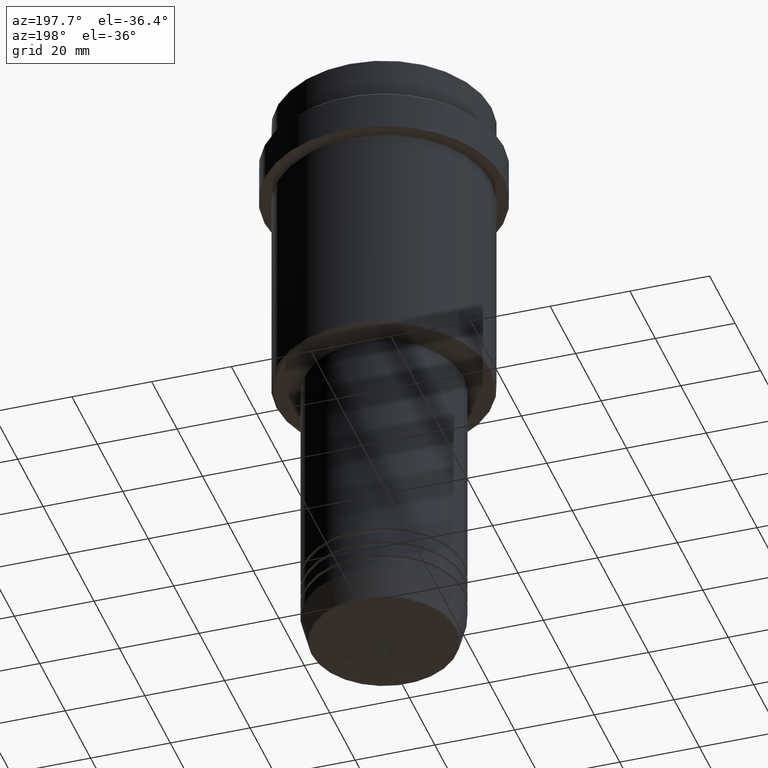
[diagram: clean part render]
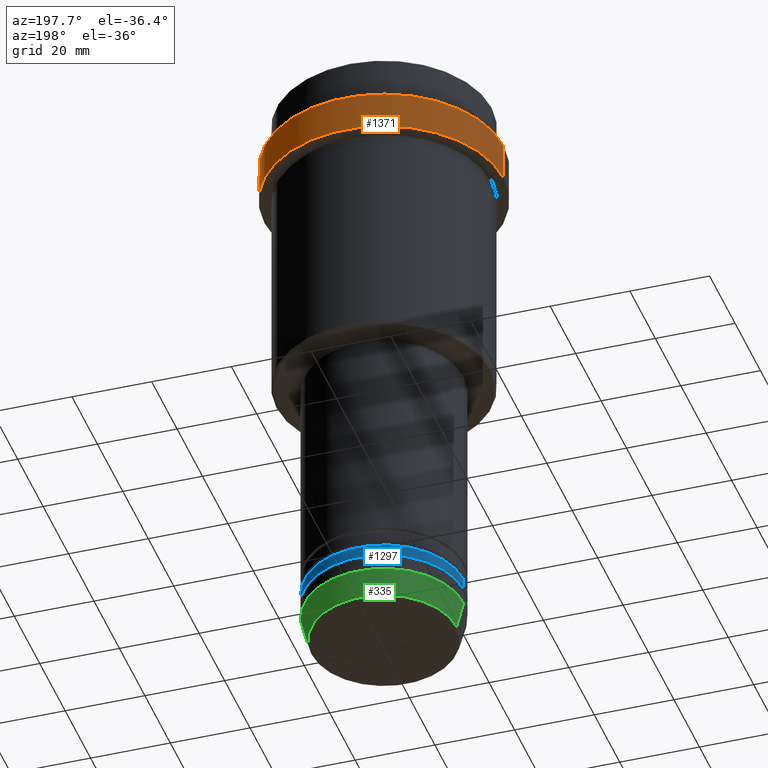
[diagram: same view with three faces highlighted in distinct colors, each labeled with its STEP entity id]
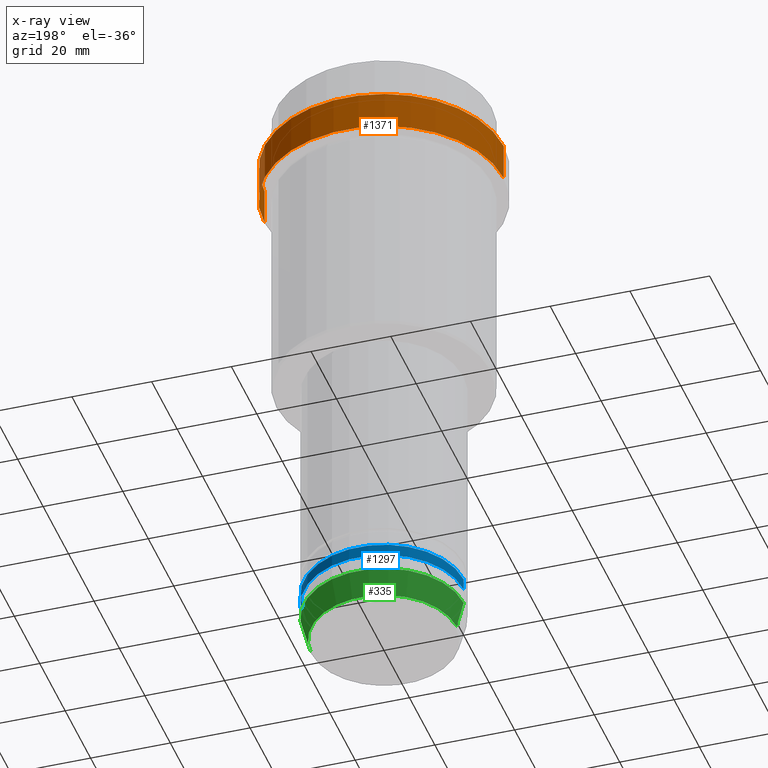
[diagram: x-ray of the same camera — body ghosted, the three highlighted faces saturated]
A machine part, auxiliary view with three faces highlighted in distinct colors.
The next image is the same camera in x-ray (body ghosted, the three faces saturated) — at least one of them is partly hidden behind the body in this view.
Their STEP definitions:

[orange] entity #1371 — the highlighted cylindrical surface (partial cylindrical patch) has radius 30 mm, axis along (-0, -0, 1).
#12 = LINE ( 'NONE', #798, #1314 ) ;
#81 = EDGE_CURVE ( 'NONE', #1157, #311, #12, .T. ) ;
#87 = DIRECTION ( 'NONE',  ( 0.000000000000000000, 0.000000000000000000, -1.000000000000000000 ) ) ;
#111 = DIRECTION ( 'NONE',  ( -0.000000000000000000, -0.000000000000000000, 1.000000000000000000 ) ) ;
#220 = LINE ( 'NONE', #1326, #943 ) ;
#236 = CIRCLE ( 'NONE', #1359, 29.99999999999999645 ) ;
#295 = DIRECTION ( 'NONE',  ( -0.000000000000000000, -0.000000000000000000, 1.000000000000000000 ) ) ;
#311 = VERTEX_POINT ( 'NONE', #1198 ) ;
#370 = CARTESIAN_POINT ( 'NONE',  ( 0.000000000000000000, 0.000000000000000000, -22.00000000000000355 ) ) ;
#378 = DIRECTION ( 'NONE',  ( -0.000000000000000000, -0.000000000000000000, 1.000000000000000000 ) ) ;
#451 = DIRECTION ( 'NONE',  ( -0.000000000000000000, -0.000000000000000000, 1.000000000000000000 ) ) ;
#484 = EDGE_CURVE ( 'NONE', #311, #486, #724, .T. ) ;
#486 = VERTEX_POINT ( 'NONE', #609 ) ;
#512 = FACE_OUTER_BOUND ( 'NONE', #766, .T. ) ;
#531 = ORIENTED_EDGE ( 'NONE', *, *, #1311, .T. ) ;
#609 = CARTESIAN_POINT ( 'NONE',  ( 30.00000000000000000, 0.000000000000000000, -12.50000000000002309 ) ) ;
#610 = ORIENTED_EDGE ( 'NONE', *, *, #81, .T. ) ;
#640 = CARTESIAN_POINT ( 'NONE',  ( 0.000000000000000000, 0.000000000000000000, -12.50000000000002309 ) ) ;
#719 = CARTESIAN_POINT ( 'NONE',  ( 0.000000000000000000, 0.000000000000000000, 0.000000000000000000 ) ) ;
#724 = CIRCLE ( 'NONE', #1293, 30.00000000000000000 ) ;
#766 = EDGE_LOOP ( 'NONE', ( #531, #610, #876, #1367 ) ) ;
#798 = CARTESIAN_POINT ( 'NONE',  ( -30.00000000000000000, 3.673940397442059178E-15, 0.000000000000000000 ) ) ;
#855 = CYLINDRICAL_SURFACE ( 'NONE', #1225, 30.00000000000000000 ) ;
#876 = ORIENTED_EDGE ( 'NONE', *, *, #484, .T. ) ;
#928 = DIRECTION ( 'NONE',  ( 1.000000000000000000, 0.000000000000000000, 0.000000000000000000 ) ) ;
#943 = VECTOR ( 'NONE', #111, 1000.000000000000000 ) ;
#1057 = DIRECTION ( 'NONE',  ( 1.000000000000000000, 0.000000000000000000, 0.000000000000000000 ) ) ;
#1065 = EDGE_CURVE ( 'NONE', #1402, #486, #220, .T. ) ;
#1157 = VERTEX_POINT ( 'NONE', #1304 ) ;
#1181 = DIRECTION ( 'NONE',  ( 1.000000000000000000, 0.000000000000000000, 0.000000000000000000 ) ) ;
#1198 = CARTESIAN_POINT ( 'NONE',  ( -30.00000000000000000, 3.673940397442059178E-15, -12.50000000000002309 ) ) ;
#1225 = AXIS2_PLACEMENT_3D ( 'NONE', #719, #295, #1057 ) ;
#1283 = CARTESIAN_POINT ( 'NONE',  ( 29.99999999999999645, 0.000000000000000000, -22.00000000000000355 ) ) ;
#1293 = AXIS2_PLACEMENT_3D ( 'NONE', #640, #87, #1181 ) ;
#1304 = CARTESIAN_POINT ( 'NONE',  ( -29.99999999999999645, 3.673940397442058389E-15, -22.00000000000000355 ) ) ;
#1311 = EDGE_CURVE ( 'NONE', #1402, #1157, #236, .T. ) ;
#1314 = VECTOR ( 'NONE', #451, 1000.000000000000000 ) ;
#1326 = CARTESIAN_POINT ( 'NONE',  ( 30.00000000000000000, 0.000000000000000000, 0.000000000000000000 ) ) ;
#1359 = AXIS2_PLACEMENT_3D ( 'NONE', #370, #378, #928 ) ;
#1367 = ORIENTED_EDGE ( 'NONE', *, *, #1065, .F. ) ;
#1371 = ADVANCED_FACE ( 'NONE', ( #512 ), #855, .T. ) ;
#1402 = VERTEX_POINT ( 'NONE', #1283 ) ;

[blue] entity #1297 — the highlighted cylindrical surface (partial cylindrical patch) has radius 20 mm, axis along (-0, -0, 1).
#35 = AXIS2_PLACEMENT_3D ( 'NONE', #576, #41, #591 ) ;
#41 = DIRECTION ( 'NONE',  ( -0.000000000000000000, -0.000000000000000000, 1.000000000000000000 ) ) ;
#61 = CIRCLE ( 'NONE', #239, 20.00000000000000000 ) ;
#75 = ORIENTED_EDGE ( 'NONE', *, *, #160, .T. ) ;
#133 = DIRECTION ( 'NONE',  ( -0.000000000000000000, -0.000000000000000000, 1.000000000000000000 ) ) ;
#157 = DIRECTION ( 'NONE',  ( -0.000000000000000000, -0.000000000000000000, 1.000000000000000000 ) ) ;
#160 = EDGE_CURVE ( 'NONE', #614, #1006, #1256, .T. ) ;
#173 = CARTESIAN_POINT ( 'NONE',  ( -20.00000000000000000, 2.449293598294706513E-15, -141.9999999999999147 ) ) ;
#191 = VERTEX_POINT ( 'NONE', #956 ) ;
#232 = CARTESIAN_POINT ( 'NONE',  ( 20.00000000000000000, 0.000000000000000000, -141.9999999999999147 ) ) ;
#239 = AXIS2_PLACEMENT_3D ( 'NONE', #374, #133, #1004 ) ;
#269 = ORIENTED_EDGE ( 'NONE', *, *, #853, .T. ) ;
#272 = CARTESIAN_POINT ( 'NONE',  ( -20.00000000000000000, 2.449293598294706513E-15, 0.000000000000000000 ) ) ;
#305 = EDGE_CURVE ( 'NONE', #1169, #191, #1273, .T. ) ;
#322 = ORIENTED_EDGE ( 'NONE', *, *, #305, .F. ) ;
#355 = FACE_OUTER_BOUND ( 'NONE', #976, .T. ) ;
#374 = CARTESIAN_POINT ( 'NONE',  ( 0.000000000000000000, 0.000000000000000000, -141.9999999999999147 ) ) ;
#458 = CARTESIAN_POINT ( 'NONE',  ( 0.000000000000000000, 0.000000000000000000, 0.000000000000000000 ) ) ;
#459 = EDGE_CURVE ( 'NONE', #191, #1006, #864, .T. ) ;
#576 = CARTESIAN_POINT ( 'NONE',  ( 0.000000000000000000, 0.000000000000000000, -138.9999999999999147 ) ) ;
#591 = DIRECTION ( 'NONE',  ( 1.000000000000000000, 0.000000000000000000, 0.000000000000000000 ) ) ;
#614 = VERTEX_POINT ( 'NONE', #173 ) ;
#615 = CARTESIAN_POINT ( 'NONE',  ( 20.00000000000000000, 0.000000000000000000, 0.000000000000000000 ) ) ;
#638 = CARTESIAN_POINT ( 'NONE',  ( -20.00000000000000000, 2.449293598294706513E-15, -138.9999999999999147 ) ) ;
#687 = DIRECTION ( 'NONE',  ( -0.000000000000000000, -0.000000000000000000, 1.000000000000000000 ) ) ;
#853 = EDGE_CURVE ( 'NONE', #1169, #614, #61, .T. ) ;
#864 = CIRCLE ( 'NONE', #35, 20.00000000000000000 ) ;
#885 = VECTOR ( 'NONE', #1387, 1000.000000000000000 ) ;
#956 = CARTESIAN_POINT ( 'NONE',  ( 20.00000000000000000, 0.000000000000000000, -138.9999999999999147 ) ) ;
#976 = EDGE_LOOP ( 'NONE', ( #269, #75, #1400, #322 ) ) ;
#1004 = DIRECTION ( 'NONE',  ( 1.000000000000000000, 0.000000000000000000, 0.000000000000000000 ) ) ;
#1006 = VERTEX_POINT ( 'NONE', #638 ) ;
#1008 = DIRECTION ( 'NONE',  ( 1.000000000000000000, 0.000000000000000000, 0.000000000000000000 ) ) ;
#1034 = AXIS2_PLACEMENT_3D ( 'NONE', #458, #687, #1008 ) ;
#1169 = VERTEX_POINT ( 'NONE', #232 ) ;
#1173 = VECTOR ( 'NONE', #157, 1000.000000000000000 ) ;
#1256 = LINE ( 'NONE', #272, #1173 ) ;
#1273 = LINE ( 'NONE', #615, #885 ) ;
#1297 = ADVANCED_FACE ( 'NONE', ( #355 ), #1358, .T. ) ;
#1358 = CYLINDRICAL_SURFACE ( 'NONE', #1034, 20.00000000000000000 ) ;
#1387 = DIRECTION ( 'NONE',  ( -0.000000000000000000, -0.000000000000000000, 1.000000000000000000 ) ) ;
#1400 = ORIENTED_EDGE ( 'NONE', *, *, #459, .F. ) ;

[green] entity #335 — the highlighted conical surface has half-angle 15 deg.
#26 = EDGE_CURVE ( 'NONE', #646, #562, #623, .T. ) ;
#95 = EDGE_CURVE ( 'NONE', #802, #600, #1052, .T. ) ;
#114 = DIRECTION ( 'NONE',  ( 1.000000000000000000, 0.000000000000000000, 0.000000000000000000 ) ) ;
#155 = DIRECTION ( 'NONE',  ( -0.2588190451025213501, 3.169619151431772337E-17, 0.9659258262890680902 ) ) ;
#162 = AXIS2_PLACEMENT_3D ( 'NONE', #789, #540, #114 ) ;
#215 = FACE_OUTER_BOUND ( 'NONE', #441, .T. ) ;
#335 = ADVANCED_FACE ( 'NONE', ( #215 ), #470, .T. ) ;
#441 = EDGE_LOOP ( 'NONE', ( #1093, #1372, #756, #886 ) ) ;
#470 = CONICAL_SURFACE ( 'NONE', #162, 20.00000000000000000, 0.2617993877991500740 ) ;
#475 = CARTESIAN_POINT ( 'NONE',  ( 18.22365507213719482, 0.000000000000000000, -152.6294095225512706 ) ) ;
#516 = VECTOR ( 'NONE', #536, 1000.000000000000000 ) ;
#536 = DIRECTION ( 'NONE',  ( 0.2588190451025213501, 0.000000000000000000, 0.9659258262890680902 ) ) ;
#540 = DIRECTION ( 'NONE',  ( -0.000000000000000000, -0.000000000000000000, 1.000000000000000000 ) ) ;
#549 = LINE ( 'NONE', #1212, #516 ) ;
#562 = VERTEX_POINT ( 'NONE', #850 ) ;
#600 = VERTEX_POINT ( 'NONE', #1060 ) ;
#623 = CIRCLE ( 'NONE', #702, 20.00000000000000000 ) ;
#646 = VERTEX_POINT ( 'NONE', #665 ) ;
#665 = CARTESIAN_POINT ( 'NONE',  ( 20.00000000000000000, 0.000000000000000000, -146.0000000000000000 ) ) ;
#676 = DIRECTION ( 'NONE',  ( -0.000000000000000000, -0.000000000000000000, 1.000000000000000000 ) ) ;
#692 = DIRECTION ( 'NONE',  ( 1.000000000000000000, 0.000000000000000000, 0.000000000000000000 ) ) ;
#699 = CARTESIAN_POINT ( 'NONE',  ( -20.00000000000000000, 2.449293598294706513E-15, -146.0000000000000000 ) ) ;
#702 = AXIS2_PLACEMENT_3D ( 'NONE', #1395, #854, #1088 ) ;
#723 = AXIS2_PLACEMENT_3D ( 'NONE', #1216, #676, #692 ) ;
#756 = ORIENTED_EDGE ( 'NONE', *, *, #26, .F. ) ;
#765 = EDGE_CURVE ( 'NONE', #600, #562, #1231, .T. ) ;
#789 = CARTESIAN_POINT ( 'NONE',  ( 0.000000000000000000, 0.000000000000000000, -146.0000000000000000 ) ) ;
#802 = VERTEX_POINT ( 'NONE', #475 ) ;
#850 = CARTESIAN_POINT ( 'NONE',  ( -20.00000000000000000, 2.449293598294706513E-15, -146.0000000000000000 ) ) ;
#854 = DIRECTION ( 'NONE',  ( -0.000000000000000000, -0.000000000000000000, 1.000000000000000000 ) ) ;
#886 = ORIENTED_EDGE ( 'NONE', *, *, #1136, .F. ) ;
#1052 = CIRCLE ( 'NONE', #723, 18.22365507213719482 ) ;
#1060 = CARTESIAN_POINT ( 'NONE',  ( -18.22365507213719482, 2.340523841790264718E-15, -152.6294095225512706 ) ) ;
#1088 = DIRECTION ( 'NONE',  ( 1.000000000000000000, 0.000000000000000000, 0.000000000000000000 ) ) ;
#1093 = ORIENTED_EDGE ( 'NONE', *, *, #95, .T. ) ;
#1136 = EDGE_CURVE ( 'NONE', #802, #646, #549, .T. ) ;
#1212 = CARTESIAN_POINT ( 'NONE',  ( 20.00000000000000000, 0.000000000000000000, -146.0000000000000000 ) ) ;
#1216 = CARTESIAN_POINT ( 'NONE',  ( 0.000000000000000000, 0.000000000000000000, -152.6294095225512706 ) ) ;
#1230 = VECTOR ( 'NONE', #155, 1000.000000000000000 ) ;
#1231 = LINE ( 'NONE', #699, #1230 ) ;
#1372 = ORIENTED_EDGE ( 'NONE', *, *, #765, .T. ) ;
#1395 = CARTESIAN_POINT ( 'NONE',  ( 0.000000000000000000, 0.000000000000000000, -146.0000000000000000 ) ) ;